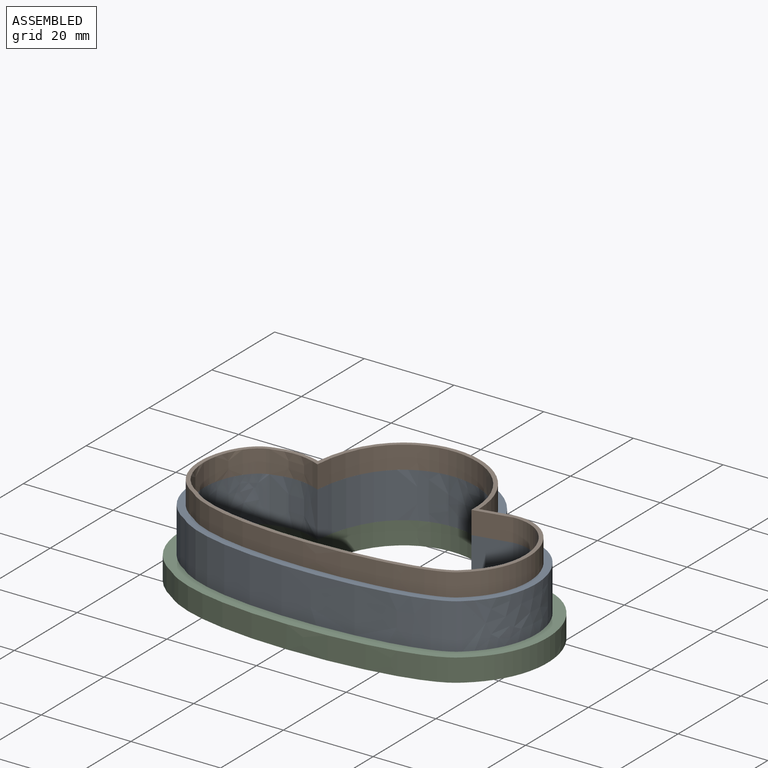
[diagram: assembled view]
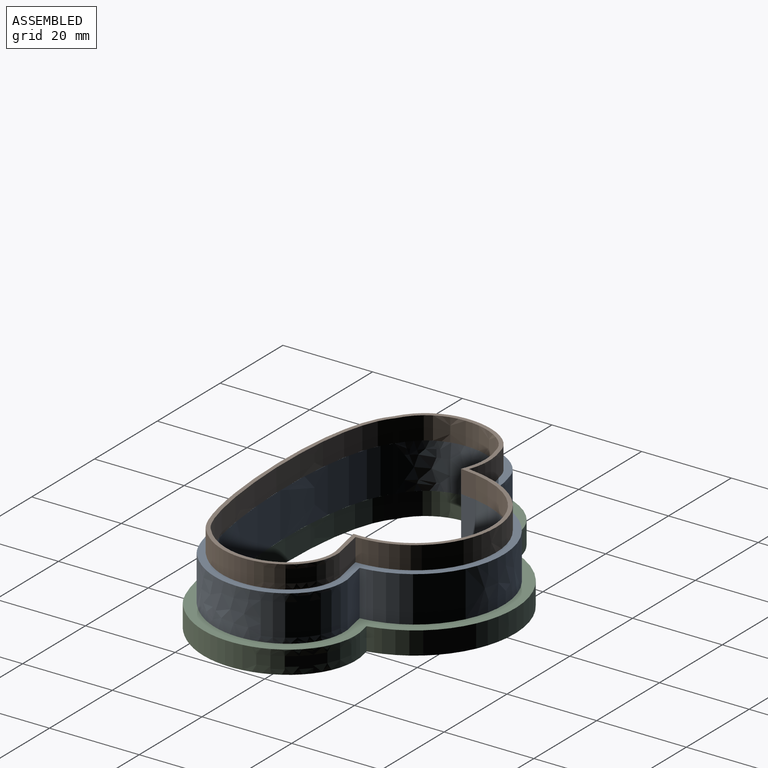
[diagram: assembled view, second angle]
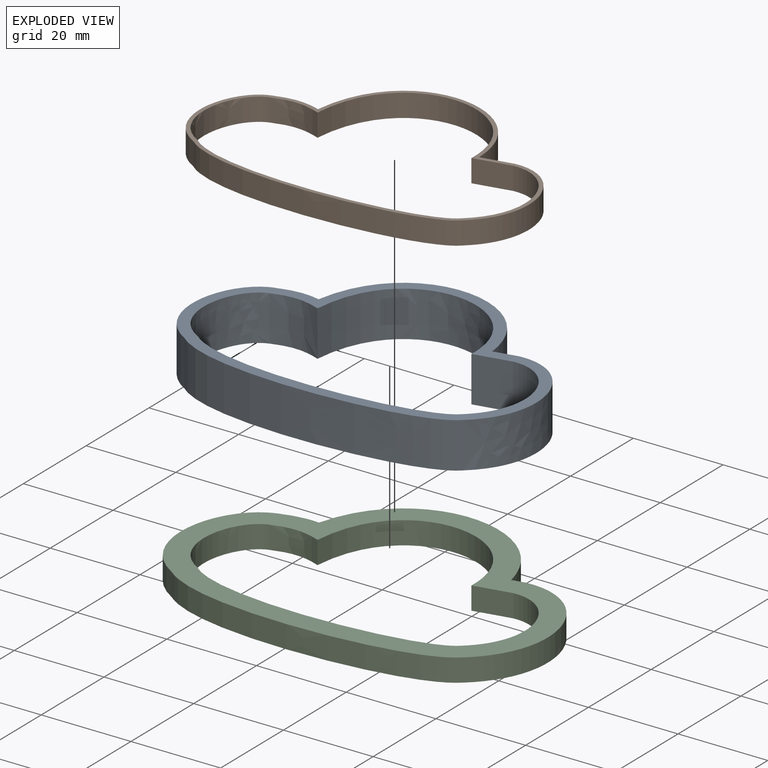
[diagram: exploded view]
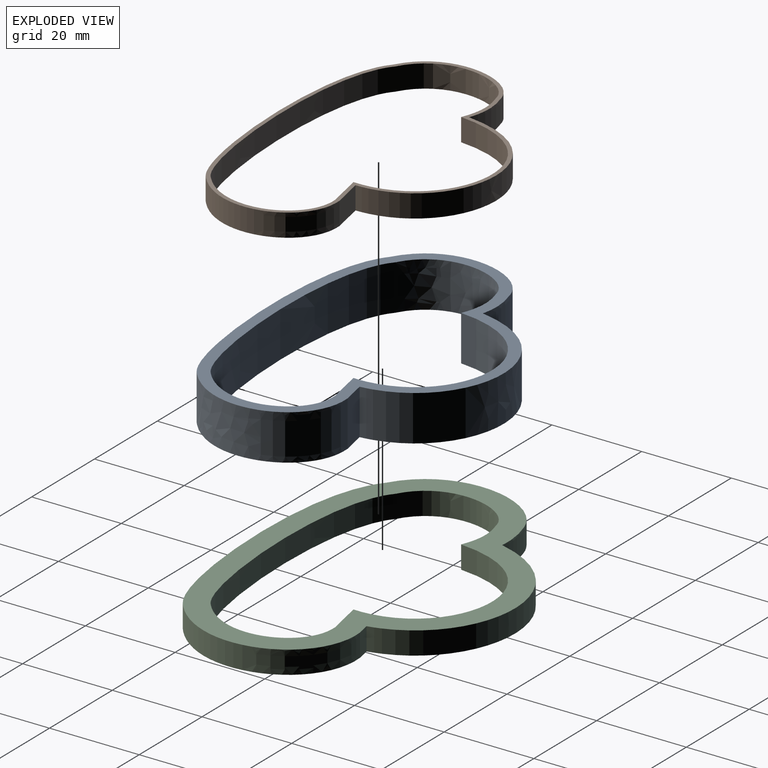
[diagram: exploded view, second angle]
ASSEMBLY  parts=3 mates=2
PART A: 14 faces, bbox 76.2x54.5x10.3 mm
  f0: plane 76.24x54.54mm, normal (0,0,1), area 515.9mm2, adj f2,f3,f4,f5,f6,f7,f8,f9
  f1: plane 76.24x54.54mm, normal (0,0,-1), area 515.9mm2, adj f2,f3,f4,f5,f6,f7,f8,f9
  f2: extruded ~38.89x18.28mm, area 592.1mm2, adj f0,f1,f3,f7
  f3: extruded ~10.16x9.6mm, area 99.2mm2, adj f0,f1,f2,f4
  f4: extruded ~27.32x10.16mm, area 339.8mm2, adj f0,f1,f3,f5
  f5: extruded ~61.77x10.16mm, area 649.1mm2, adj f0,f1,f4,f6
  f6: extruded ~28.57x13.99mm, area 393.3mm2, adj f0,f1,f5,f7
  f7: plane 10.16x5.36mm, normal (-0.2,0.98,0), area 55.5mm2, adj f0,f1,f2,f6
  f8: extruded ~34.31x18.84mm, area 577mm2, adj f0,f1,f9,f13
  f9: extruded ~10.94x10.16mm, area 114.1mm2, adj f0,f1,f8,f10
  f10: extruded ~22.81x10.16mm, area 282.5mm2, adj f0,f1,f9,f11
  f11: extruded ~58.61x10.16mm, area 614.5mm2, adj f0,f1,f10,f12
  f12: extruded ~24.13x11.1mm, area 328mm2, adj f0,f1,f11,f13
  f13: plane 10.16x8.16mm, normal (0.2,-0.98,0), area 84.6mm2, adj f0,f1,f8,f12
PART B: 14 faces, bbox 74.7x54.7x5.3 mm
  f0: plane 74.7x54.67mm, normal (0,0,1), area 176.9mm2, adj f2,f3,f4,f5,f6,f7,f8,f9
  f1: plane 74.7x54.67mm, normal (0,0,-1), area 176.9mm2, adj f2,f3,f4,f5,f6,f7,f8,f9
  f2: extruded ~35.99x18.63mm, area 290.8mm2, adj f0,f1,f3,f7
  f3: extruded ~10.45x5.08mm, area 54.2mm2, adj f0,f1,f2,f4
  f4: extruded ~24.39x7.17mm, area 151.3mm2, adj f0,f1,f3,f5
  f5: extruded ~59.72x5.76mm, area 313.3mm2, adj f0,f1,f4,f6
  f6: extruded ~25.69x12.11mm, area 175.5mm2, adj f0,f1,f5,f7
  f7: plane 7.13x5.08mm, normal (-0.2,0.98,0), area 37mm2, adj f0,f1,f2,f6
  f8: extruded ~34.31x18.84mm, area 288.5mm2, adj f0,f1,f9,f13
  f9: extruded ~10.94x5.08mm, area 57.1mm2, adj f0,f1,f8,f10
  f10: extruded ~22.81x6.55mm, area 141.3mm2, adj f0,f1,f9,f11
  f11: extruded ~58.61x5.54mm, area 307.3mm2, adj f0,f1,f10,f12
  f12: extruded ~24.13x11.1mm, area 164mm2, adj f0,f1,f11,f13
  f13: plane 8.16x5.08mm, normal (0.2,-0.98,0), area 42.3mm2, adj f0,f1,f8,f12
PART C: 14 faces, bbox 81.3x57.1x5.2 mm
  f0: plane 81.3x57.06mm, normal (0,0,1), area 1065.6mm2, adj f2,f3,f4,f5,f6,f7,f8,f9
  f1: plane 81.3x57.06mm, normal (0,0,-1), area 1065.6mm2, adj f2,f3,f4,f5,f6,f7,f8,f9
  f2: extruded ~42.96x17.79mm, area 305.9mm2, adj f0,f1,f3,f7
  f3: extruded ~8.42x5.08mm, area 43.5mm2, adj f0,f1,f2,f4
  f4: extruded ~31.83x10.08mm, area 198.5mm2, adj f0,f1,f3,f5
  f5: extruded ~64.91x6.82mm, area 341.8mm2, adj f0,f1,f4,f6
  f6: extruded ~33.02x16.87mm, area 229.8mm2, adj f0,f1,f5,f7
  f7: plane 5.08x2.9mm, normal (-0.2,0.98,0), area 15mm2, adj f0,f1,f2,f6
  f8: extruded ~34.31x18.84mm, area 288.5mm2, adj f0,f1,f9,f13
  f9: extruded ~10.94x5.08mm, area 57.1mm2, adj f0,f1,f8,f10
  f10: extruded ~22.81x6.55mm, area 141.3mm2, adj f0,f1,f9,f11
  f11: extruded ~58.61x5.54mm, area 307.3mm2, adj f0,f1,f10,f12
  f12: extruded ~24.13x11.1mm, area 164mm2, adj f0,f1,f11,f13
  f13: plane 8.16x5.08mm, normal (0.2,-0.98,0), area 42.3mm2, adj f0,f1,f8,f12
PLACE A t=(153.85,12.49,5.08)mm
PLACE B t=(69.01,25.47,15.24)mm
PLACE C at identity
MATE fastened B.f1 <-> A.f0  axis (0,0,1) through (52.31,30.41,15.24)mm
MATE fastened A.f1 <-> C.f0  axis (0,0,1) through (52.31,30.41,5.08)mm
